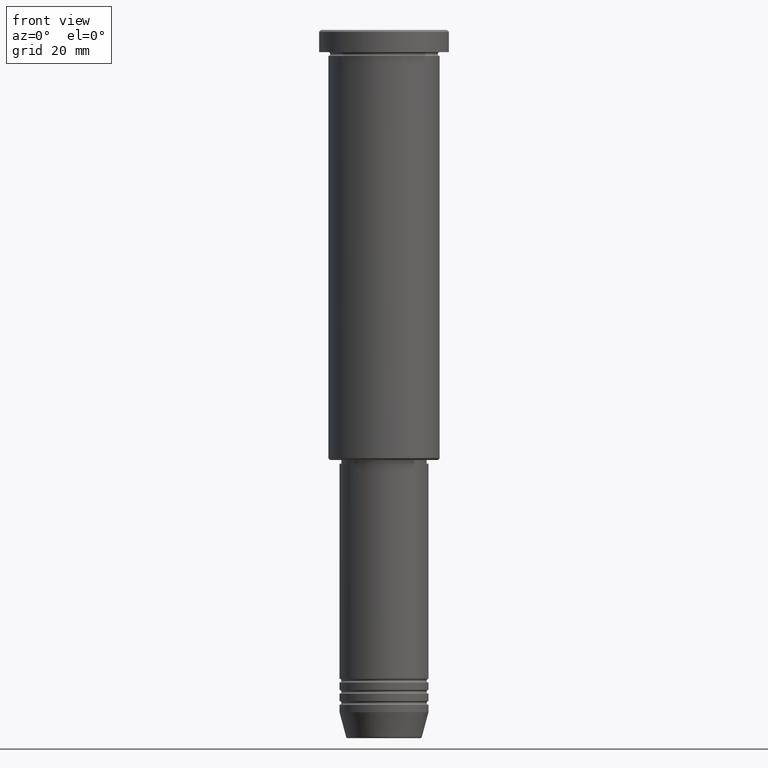
[diagram: clean part render]
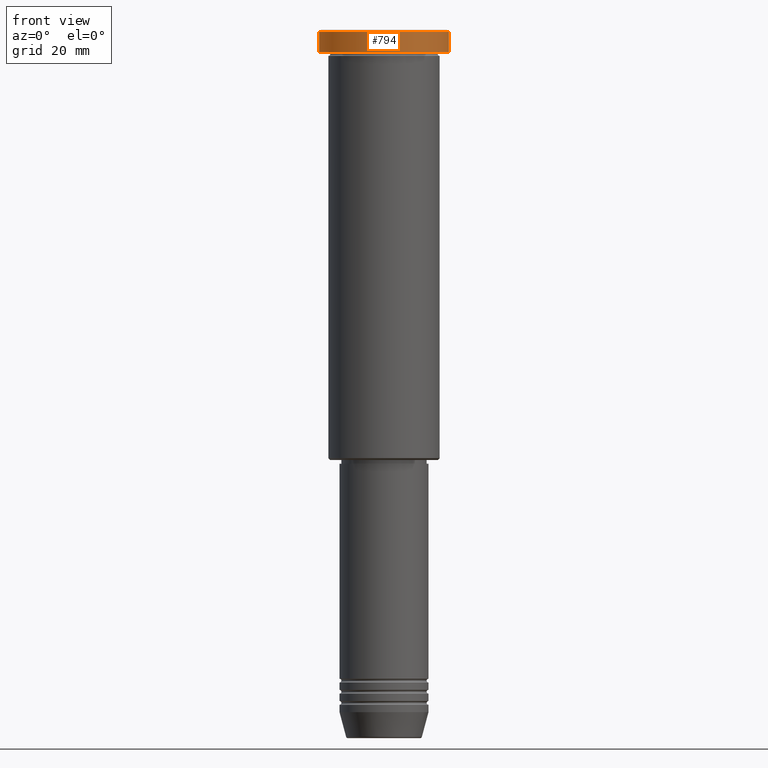
[diagram: same view with one face highlighted and labeled with its STEP entity id]
A machine part, front view. The second image highlights one B-rep face of the part: STEP entity #794.
In plain terms, the highlighted cylindrical surface (partial cylindrical patch) has radius 17.5 mm, axis along (-0, -0, 1).
Its self-contained STEP definition (entity closure, byte-faithful):
#10 = CARTESIAN_POINT ( 'NONE',  ( -17.50000000000000000, 2.143131898507868248E-15, -0.5000000000000003331 ) ) ;
#11 = CARTESIAN_POINT ( 'NONE',  ( -17.50000000000000000, 2.143131898507868248E-15, 0.000000000000000000 ) ) ;
#49 = VERTEX_POINT ( 'NONE', #785 ) ;
#97 = CARTESIAN_POINT ( 'NONE',  ( 17.50000000000000000, 0.000000000000000000, 0.000000000000000000 ) ) ;
#106 = CARTESIAN_POINT ( 'NONE',  ( -17.50000000000000000, 2.143131898507868248E-15, -5.999999999999995559 ) ) ;
#135 = VECTOR ( 'NONE', #821, 1000.000000000000000 ) ;
#165 = DIRECTION ( 'NONE',  ( 1.000000000000000000, 0.000000000000000000, 0.000000000000000000 ) ) ;
#204 = AXIS2_PLACEMENT_3D ( 'NONE', #717, #630, #165 ) ;
#243 = CARTESIAN_POINT ( 'NONE',  ( 0.000000000000000000, 0.000000000000000000, -5.999999999999995559 ) ) ;
#282 = AXIS2_PLACEMENT_3D ( 'NONE', #528, #447, #366 ) ;
#316 = AXIS2_PLACEMENT_3D ( 'NONE', #243, #1144, #1099 ) ;
#331 = ORIENTED_EDGE ( 'NONE', *, *, #768, .F. ) ;
#336 = CIRCLE ( 'NONE', #282, 17.50000000000000000 ) ;
#366 = DIRECTION ( 'NONE',  ( 1.000000000000000000, 0.000000000000000000, 0.000000000000000000 ) ) ;
#398 = CIRCLE ( 'NONE', #316, 17.50000000000000000 ) ;
#417 = CARTESIAN_POINT ( 'NONE',  ( 17.50000000000000000, 0.000000000000000000, -0.5000000000000003331 ) ) ;
#447 = DIRECTION ( 'NONE',  ( 0.000000000000000000, 0.000000000000000000, -1.000000000000000000 ) ) ;
#475 = ORIENTED_EDGE ( 'NONE', *, *, #1053, .T. ) ;
#501 = VERTEX_POINT ( 'NONE', #417 ) ;
#528 = CARTESIAN_POINT ( 'NONE',  ( 0.000000000000000000, 0.000000000000000000, -0.5000000000000003331 ) ) ;
#536 = VECTOR ( 'NONE', #996, 1000.000000000000000 ) ;
#538 = EDGE_CURVE ( 'NONE', #1133, #49, #398, .T. ) ;
#548 = LINE ( 'NONE', #97, #135 ) ;
#562 = EDGE_CURVE ( 'NONE', #49, #501, #548, .T. ) ;
#601 = ORIENTED_EDGE ( 'NONE', *, *, #538, .T. ) ;
#630 = DIRECTION ( 'NONE',  ( -0.000000000000000000, -0.000000000000000000, 1.000000000000000000 ) ) ;
#717 = CARTESIAN_POINT ( 'NONE',  ( 0.000000000000000000, 0.000000000000000000, 0.000000000000000000 ) ) ;
#768 = EDGE_CURVE ( 'NONE', #1133, #820, #824, .T. ) ;
#785 = CARTESIAN_POINT ( 'NONE',  ( 17.50000000000000000, 0.000000000000000000, -5.999999999999995559 ) ) ;
#794 = ADVANCED_FACE ( 'NONE', ( #895 ), #1174, .T. ) ;
#820 = VERTEX_POINT ( 'NONE', #10 ) ;
#821 = DIRECTION ( 'NONE',  ( -0.000000000000000000, -0.000000000000000000, 1.000000000000000000 ) ) ;
#824 = LINE ( 'NONE', #11, #536 ) ;
#895 = FACE_OUTER_BOUND ( 'NONE', #1091, .T. ) ;
#937 = ORIENTED_EDGE ( 'NONE', *, *, #562, .T. ) ;
#996 = DIRECTION ( 'NONE',  ( -0.000000000000000000, -0.000000000000000000, 1.000000000000000000 ) ) ;
#1053 = EDGE_CURVE ( 'NONE', #501, #820, #336, .T. ) ;
#1091 = EDGE_LOOP ( 'NONE', ( #331, #601, #937, #475 ) ) ;
#1099 = DIRECTION ( 'NONE',  ( 1.000000000000000000, 0.000000000000000000, 0.000000000000000000 ) ) ;
#1133 = VERTEX_POINT ( 'NONE', #106 ) ;
#1144 = DIRECTION ( 'NONE',  ( -0.000000000000000000, -0.000000000000000000, 1.000000000000000000 ) ) ;
#1174 = CYLINDRICAL_SURFACE ( 'NONE', #204, 17.50000000000000000 ) ;